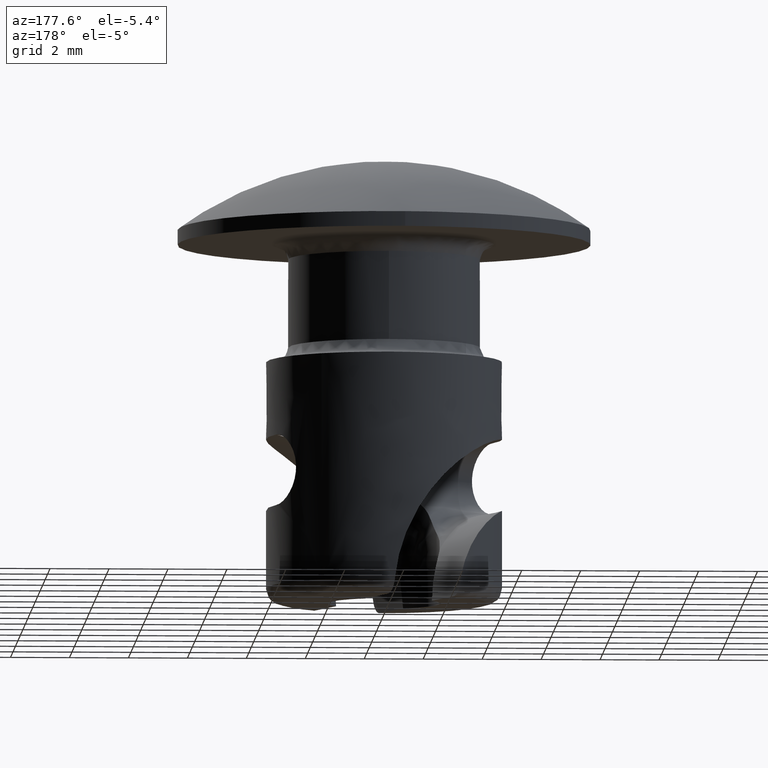
[diagram: clean part render]
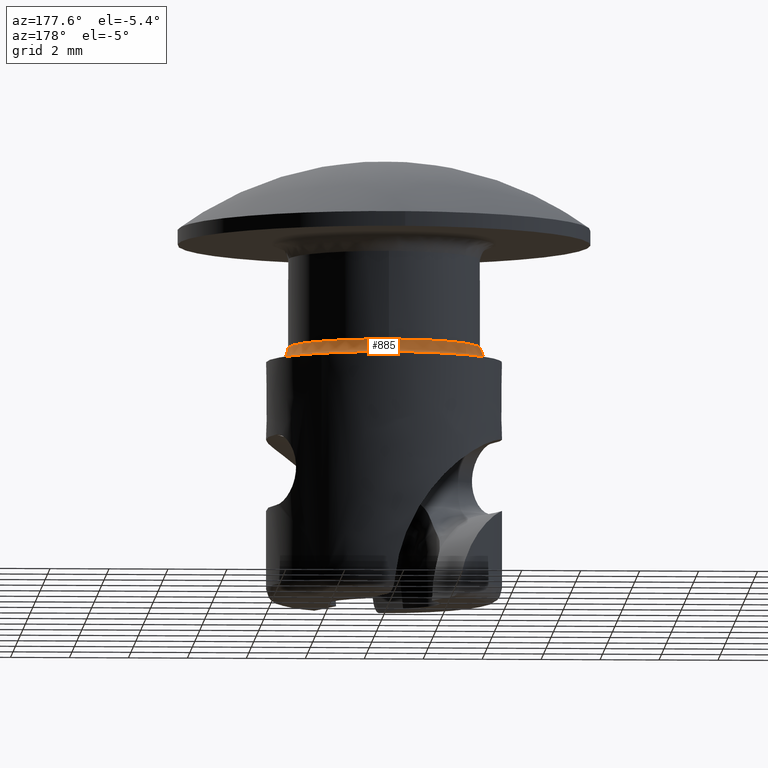
[diagram: same view with one face highlighted and labeled with its STEP entity id]
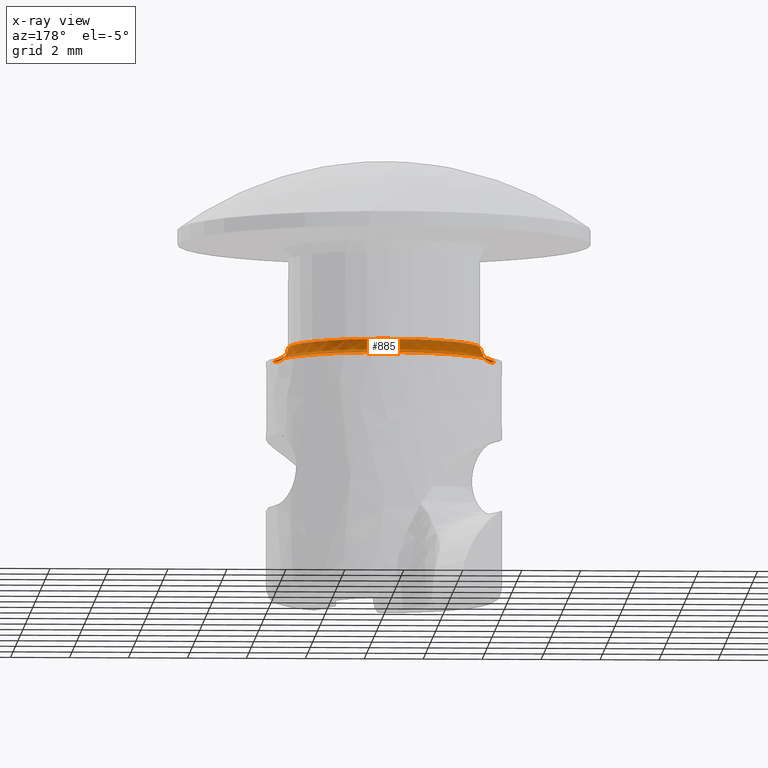
[diagram: x-ray of the same camera — body ghosted, the highlighted face saturated]
A machine part, auxiliary view. The second image highlights one B-rep face of the part: STEP entity #885.
The next image is the same camera in x-ray: the body ghosted, the highlighted face saturated — about 0% of this face is hidden behind the body in this view.
In plain terms, the highlighted face is a freeform B-spline surface patch.
Its self-contained STEP definition (entity closure, byte-faithful):
#574=CARTESIAN_POINT('',(-0.028359794209335,3.249876262578363,-3.499992000015144));
#575=VERTEX_POINT('',#574);
#576=CARTESIAN_POINT('',(-3.249743393662270,0.040839629631426,-3.499992000029682));
#577=VERTEX_POINT('',#576);
#578=CARTESIAN_POINT('',(-0.028359794209335,3.249876262578364,-3.499992000015144));
#579=CARTESIAN_POINT('',(-3.209764216664997,3.222113982593769,-3.499992000029588));
#580=CARTESIAN_POINT('',(-3.249743393662269,0.040839629631426,-3.499992000029682));
#588=(BOUNDED_CURVE()B_SPLINE_CURVE(2,(#578,#579,#580),.UNSPECIFIED.,.F.,.U.)B_SPLINE_CURVE_WITH_KNOTS((3,3),(0.251539815953316,0.497784295921158),.UNSPECIFIED.)CURVE()GEOMETRIC_REPRESENTATION_ITEM()RATIONAL_B_SPLINE_CURVE((0.996414209497610,0.711474669430374,0.994854295642701))REPRESENTATION_ITEM(''));
#589=EDGE_CURVE('',#575,#577,#588,.T.);
#656=CARTESIAN_POINT('',(3.250000000000000,0.0,-3.499992000000175));
#657=VERTEX_POINT('',#656);
#658=CARTESIAN_POINT('',(3.250000000000000,0.0,-3.499992000000175));
#659=CARTESIAN_POINT('',(3.250000000000001,3.249999999999840,-3.499992000000265));
#660=CARTESIAN_POINT('',(3.027298E-015,3.249999999999679,-3.499992000015016));
#661=CARTESIAN_POINT('',(-0.014180167045790,3.249999999999678,-3.499992000015080));
#662=CARTESIAN_POINT('',(-0.028359794209335,3.249876262578364,-3.499992000015144));
#670=(BOUNDED_CURVE()B_SPLINE_CURVE(2,(#658,#659,#660,#661,#662),.UNSPECIFIED.,.F.,.U.)B_SPLINE_CURVE_WITH_KNOTS((3,2,3),(0.0,0.250000000000000,0.251539815953316),.UNSPECIFIED.)CURVE()GEOMETRIC_REPRESENTATION_ITEM()RATIONAL_B_SPLINE_CURVE((1.0,0.707106781186547,1.0,0.998195993396212,0.996414209497610))REPRESENTATION_ITEM(''));
#671=EDGE_CURVE('',#657,#575,#670,.T.);
#677=CARTESIAN_POINT('',(3.249743393662270,-0.040839629631425,-3.499992000029681));
#678=VERTEX_POINT('',#677);
#692=CARTESIAN_POINT('',(3.249743393662269,-0.040839629631425,-3.499992000029681));
#693=CARTESIAN_POINT('',(3.250000000000000,-0.020420620978907,-3.499992000014929));
#694=CARTESIAN_POINT('',(3.250000000000000,0.0,-3.499992000000175));
#702=(BOUNDED_CURVE()B_SPLINE_CURVE(2,(#692,#693,#694),.UNSPECIFIED.,.F.,.U.)B_SPLINE_CURVE_WITH_KNOTS((3,3),(0.997784295921158,1.0),.UNSPECIFIED.)CURVE()GEOMETRIC_REPRESENTATION_ITEM()RATIONAL_B_SPLINE_CURVE((0.994854295642701,0.997404141201640,1.0))REPRESENTATION_ITEM(''));
#703=EDGE_CURVE('',#678,#657,#702,.T.);
#733=CARTESIAN_POINT('',(-3.749703915248357,0.047122649624261,-3.999992000000190));
#734=VERTEX_POINT('',#733);
#748=CARTESIAN_POINT('',(3.749703915248357,-0.047122649624261,-3.999992000000175));
#749=VERTEX_POINT('',#748);
#779=CARTESIAN_POINT('',(3.249743393662269,-0.040839629631425,-3.499992000029681));
#780=CARTESIAN_POINT('',(3.249743393691411,-0.040839629660613,-3.999991999485038));
#781=CARTESIAN_POINT('',(3.749703915248358,-0.047122649624261,-3.999992000000175));
#789=(BOUNDED_CURVE()B_SPLINE_CURVE(2,(#779,#780,#781),.UNSPECIFIED.,.F.,.U.)B_SPLINE_CURVE_WITH_KNOTS((3,3),(-1.725134643221297,-0.274865357774724),.UNSPECIFIED.)CURVE()GEOMETRIC_REPRESENTATION_ITEM()RATIONAL_B_SPLINE_CURVE((0.883342149631467,0.624617224326861,0.883342149276091))REPRESENTATION_ITEM(''));
#790=EDGE_CURVE('',#678,#749,#789,.T.);
#795=CARTESIAN_POINT('',(-3.249743393662270,0.040839629631426,-3.499992000029682));
#796=CARTESIAN_POINT('',(-3.249743393691412,0.040839629660613,-3.999991999485046));
#797=CARTESIAN_POINT('',(-3.749703915248357,0.047122649624261,-3.999992000000190));
#805=(BOUNDED_CURVE()B_SPLINE_CURVE(2,(#795,#796,#797),.UNSPECIFIED.,.F.,.U.)B_SPLINE_CURVE_WITH_KNOTS((3,3),(-1.725134643221296,-0.274865357774725),.UNSPECIFIED.)CURVE()GEOMETRIC_REPRESENTATION_ITEM()RATIONAL_B_SPLINE_CURVE((0.883342149631467,0.624617224326861,0.883342149276091))REPRESENTATION_ITEM(''));
#806=EDGE_CURVE('',#577,#734,#805,.T.);
#811=CARTESIAN_POINT('',(3.250953615354651,-0.040854838515779,-3.465223445443551));
#812=CARTESIAN_POINT('',(3.291808453870429,3.210098776838873,-3.465223445443552));
#813=CARTESIAN_POINT('',(0.040854838515779,3.250953615354651,-3.465223445443551));
#814=CARTESIAN_POINT('',(-3.210098776838873,3.291808453870429,-3.465223445443552));
#815=CARTESIAN_POINT('',(-3.250953615354651,0.040854838515779,-3.465223445443551));
#816=CARTESIAN_POINT('',(3.210977882847664,-0.040352462201208,-4.038760587009053));
#817=CARTESIAN_POINT('',(3.251330345048872,3.170625420646457,-4.038760587009052));
#818=CARTESIAN_POINT('',(0.040352462201208,3.210977882847664,-4.038760587009053));
#819=CARTESIAN_POINT('',(-3.170625420646457,3.251330345048872,-4.038760587009052));
#820=CARTESIAN_POINT('',(-3.210977882847664,0.040352462201208,-4.038760587009053));
#821=CARTESIAN_POINT('',(3.784469739204387,-0.047559552782540,-3.998781681766057));
#822=CARTESIAN_POINT('',(3.832029291986926,3.736910186421846,-3.998781681766058));
#823=CARTESIAN_POINT('',(0.047559552782540,3.784469739204387,-3.998781681766057));
#824=CARTESIAN_POINT('',(-3.736910186421846,3.832029291986926,-3.998781681766058));
#825=CARTESIAN_POINT('',(-3.784469739204387,0.047559552782540,-3.998781681766057));
#833=(BOUNDED_SURFACE()B_SPLINE_SURFACE(2,2,((#811,#816,#821),(#812,#817,#822),(#813,#818,#823),(#814,#819,#824),(#815,#820,#825)),.UNSPECIFIED.,.F.,.F.,.U.)B_SPLINE_SURFACE_WITH_KNOTS((3,2,3),(3,3),(0.0,6.270809886263397,12.541619772526790),(0.0,0.911186972831271),.UNSPECIFIED.)GEOMETRIC_REPRESENTATION_ITEM()RATIONAL_B_SPLINE_SURFACE(((0.910479795090997,0.597479572841838,0.910479806786608),(0.643806437242182,0.422481857576905,0.643806445512228),(0.910479795090997,0.597479572841838,0.910479806786608),(0.643806437242182,0.422481857576905,0.643806445512228),(0.910479795090997,0.597479572841838,0.910479806786608)))REPRESENTATION_ITEM('')SURFACE());
#834=CARTESIAN_POINT('',(3.750000000000000,0.0,-3.999992000000175));
#835=VERTEX_POINT('',#834);
#836=CARTESIAN_POINT('',(-3.749703915248357,0.047122649624261,-3.999992000000190));
#837=CARTESIAN_POINT('',(-3.747129433374733,0.253363600794082,-3.999992000000185));
#838=CARTESIAN_POINT('',(-3.716540006398170,0.573845598918485,-3.999992000000203));
#839=CARTESIAN_POINT('',(-3.604721136489934,1.066022886299810,-3.999992000000165));
#840=CARTESIAN_POINT('',(-3.452910870079713,1.491691136023359,-3.999992000000260));
#841=CARTESIAN_POINT('',(-3.217467258414122,1.947230583278478,-3.999992000000017));
#842=CARTESIAN_POINT('',(-2.963589500260666,2.311693793466605,-3.999992000000620));
#843=CARTESIAN_POINT('',(-2.679744476167414,2.632361004297786,-3.999991999999509));
#844=CARTESIAN_POINT('',(-2.331200824700913,2.954118041913601,-3.999992000000794));
#845=CARTESIAN_POINT('',(-1.907635607419273,3.245016773124950,-3.999991999999849));
#846=CARTESIAN_POINT('',(-1.370619689968664,3.505790181621537,-3.999992000000306));
#847=CARTESIAN_POINT('',(-0.865450849264229,3.663354720443288,-3.999992000000161));
#848=CARTESIAN_POINT('',(-0.282977797443569,3.752941737837827,-3.999992000000177));
#849=CARTESIAN_POINT('',(0.200039021574794,3.755815042604080,-3.999992000000189));
#850=CARTESIAN_POINT('',(0.670438853554543,3.696472281837978,-3.999992000000188));
#851=CARTESIAN_POINT('',(1.102642196322479,3.595583845414126,-3.999992000000176));
#852=CARTESIAN_POINT('',(1.611490089338022,3.403631619965094,-3.999992000000016));
#853=CARTESIAN_POINT('',(2.117282738982615,3.114277436359454,-3.999992000000672));
#854=CARTESIAN_POINT('',(2.588370195076368,2.734464524143226,-3.999992000000023));
#855=CARTESIAN_POINT('',(2.923007406743407,2.365326088100213,-3.999992000000263));
#856=CARTESIAN_POINT('',(3.234518408219001,1.920706299155115,-3.999992000000143));
#857=CARTESIAN_POINT('',(3.445719488436710,1.511743444091972,-3.999992000000187));
#858=CARTESIAN_POINT('',(3.599574207768138,1.071287743511634,-3.999992000000173));
#859=CARTESIAN_POINT('',(3.714766378980970,0.603484481283347,-3.999992000000177));
#860=CARTESIAN_POINT('',(3.750029536569991,0.244456337260239,-3.999992000000174));
#861=CARTESIAN_POINT('',(3.750000000000000,0.0,-3.999992000000175));
#862=B_SPLINE_CURVE_WITH_KNOTS('',3,(#836,#837,#838,#839,#840,#841,#842,#843,#844,#845,#846,#847,#848,#849,#850,#851,#852,#853,#854,#855,#856,#857,#858,#859,#860,#861),.UNSPECIFIED.,.F.,.U.,(4,1,1,1,1,1,1,1,1,1,1,1,1,1,1,1,1,1,1,1,1,1,1,4),(0.000000021432067,0.618768137977805,0.962543407803425,1.512566999762935,1.970921978823681,2.498030377302669,2.841796062549857,3.254315360221586,3.918933511554236,4.377285247333264,5.041905223038597,5.500252470598505,6.141939090742394,6.485701721797215,6.921139376724866,7.471166755905084,8.112867235979035,8.662893802605069,9.281674294320306,9.602524146748138,10.290054036674780,10.656742618813560,11.000504883526981,11.733866820730469),.UNSPECIFIED.);
#863=EDGE_CURVE('',#734,#835,#862,.T.);
#864=ORIENTED_EDGE('',*,*,#863,.F.);
#865=ORIENTED_EDGE('',*,*,#806,.F.);
#866=ORIENTED_EDGE('',*,*,#589,.F.);
#867=ORIENTED_EDGE('',*,*,#671,.F.);
#868=ORIENTED_EDGE('',*,*,#703,.F.);
#869=ORIENTED_EDGE('',*,*,#790,.T.);
#870=CARTESIAN_POINT('',(3.750000000000000,0.0,-3.999992000000175));
#871=CARTESIAN_POINT('',(3.749999999742452,-0.023562255000435,-3.999992000000176));
#872=CARTESIAN_POINT('',(3.749703915248357,-0.047122649624261,-3.999992000000175));
#880=(BOUNDED_CURVE()B_SPLINE_CURVE(2,(#870,#871,#872),.UNSPECIFIED.,.F.,.U.)B_SPLINE_CURVE_WITH_KNOTS((3,3),(0.0,0.002215704081469),.UNSPECIFIED.)CURVE()GEOMETRIC_REPRESENTATION_ITEM()RATIONAL_B_SPLINE_CURVE((1.0,0.997404141198562,0.994854295636654))REPRESENTATION_ITEM(''));
#881=EDGE_CURVE('',#835,#749,#880,.T.);
#882=ORIENTED_EDGE('',*,*,#881,.F.);
#883=EDGE_LOOP('',(#864,#865,#866,#867,#868,#869,#882));
#884=FACE_OUTER_BOUND('',#883,.T.);
#885=ADVANCED_FACE('',(#884),#833,.F.);